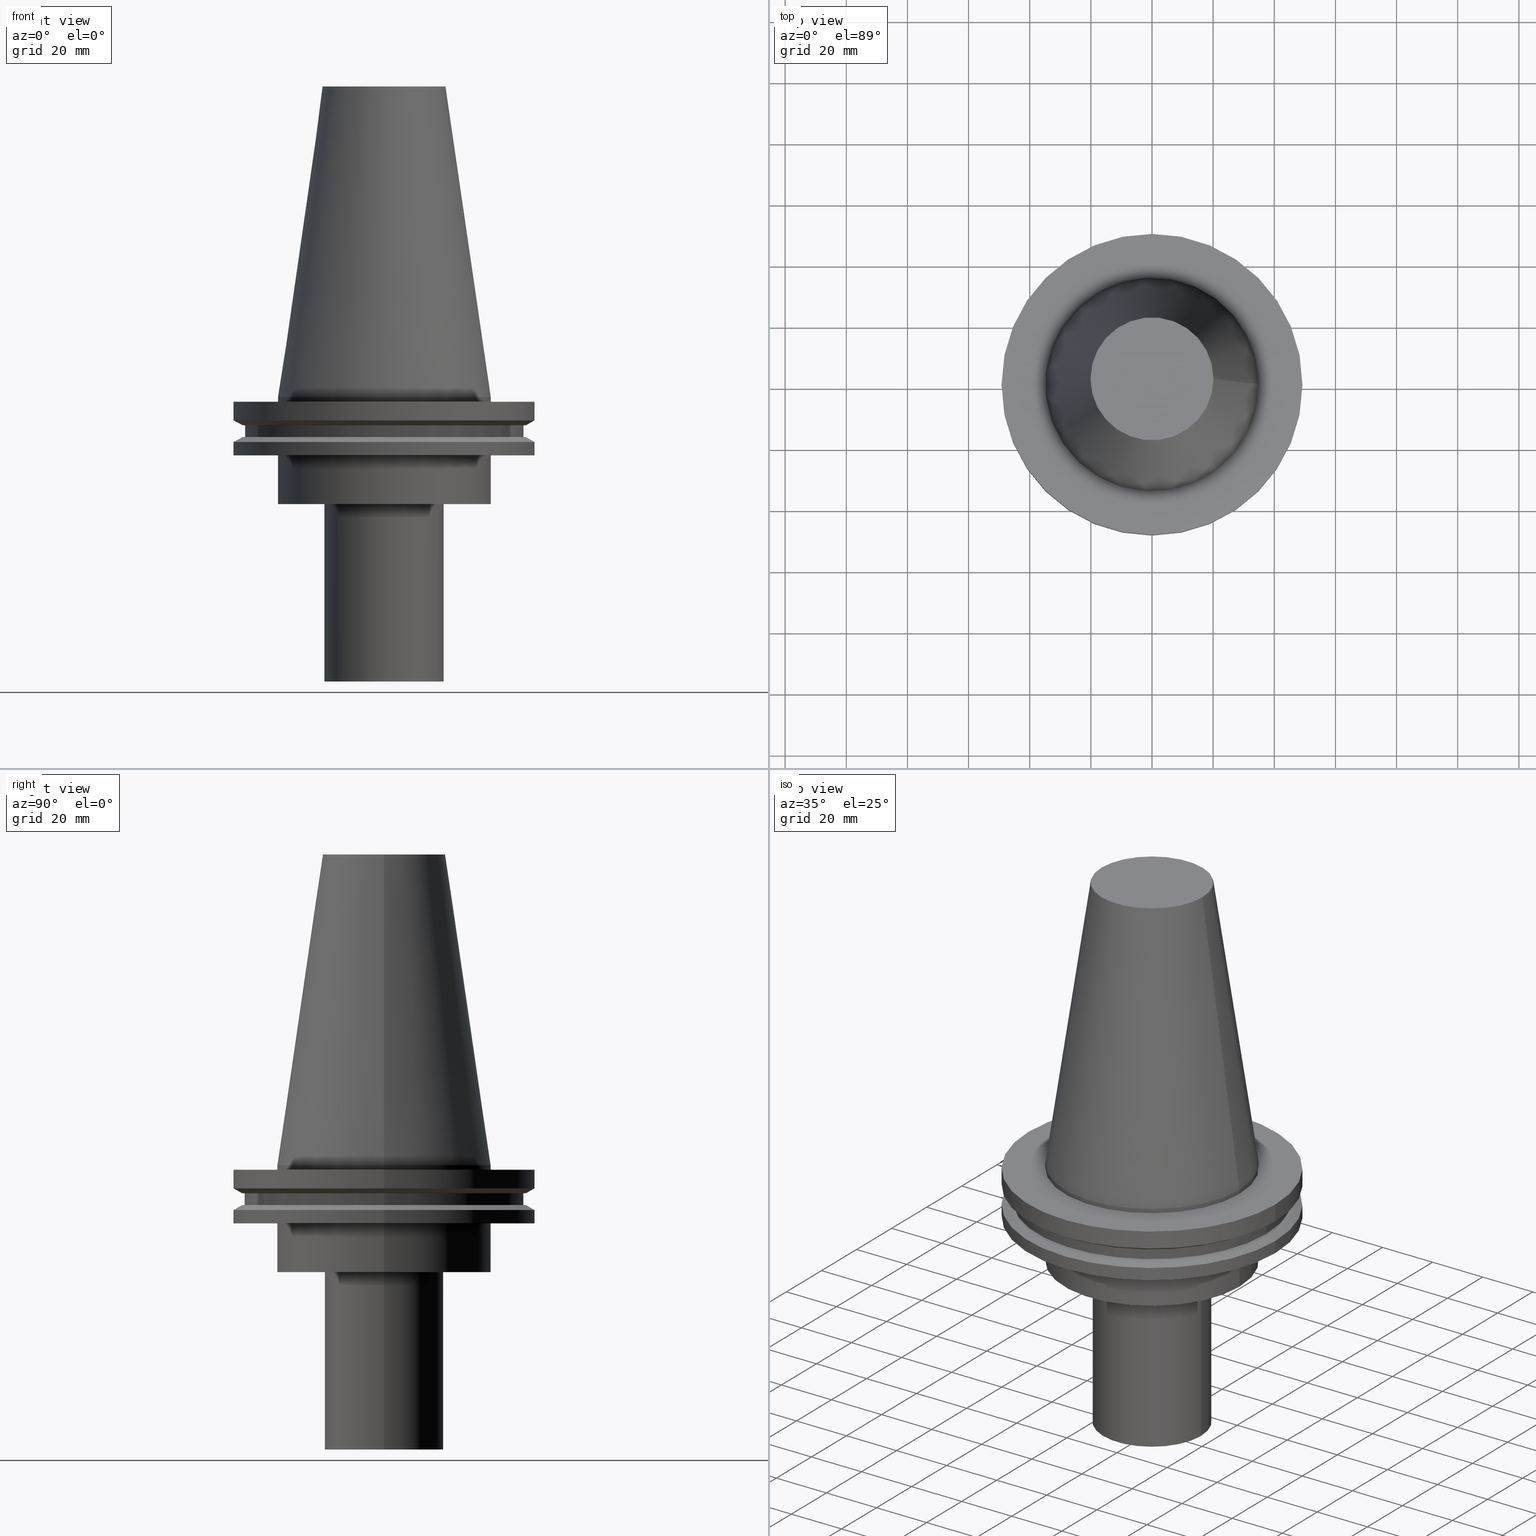
[diagram: canonical four-view strip — front | top / right | iso, engineering-drawing reading convention]
A machine part, canonical four-view strip (front | top / right | iso — engineering-drawing reading convention). The complete STEP part file that produces these views, byte-faithful:
ISO-10303-21;
HEADER;
FILE_DESCRIPTION (( 'STEP AP203' ),
    '1' );
FILE_NAME ('11.326.642.stp',
    '2022-03-09T14:50:59',
    ( '' ),
    ( '' ),
    'SwSTEP 2.0',
    'SolidWorks 2021',
    '' );
FILE_SCHEMA (( 'CONFIG_CONTROL_DESIGN' ));
ENDSEC;

DATA;
#1 = CIRCLE ( 'NONE', #322, 49.21499999999998920 ) ;
#2 = LOCAL_TIME ( 8, 50, 59.00000000000000000, #100 ) ;
#3 = VERTEX_POINT ( 'NONE', #374 ) ;
#4 = AXIS2_PLACEMENT_3D ( 'NONE', #281, #8, #366 ) ;
#5 = CARTESIAN_POINT ( 'NONE',  ( 0.000000000000000000, 0.000000000000000000, -9.204999999999991189 ) ) ;
#6 = CC_DESIGN_PERSON_AND_ORGANIZATION_ASSIGNMENT ( #320, #263, ( #236 ) ) ;
#7 = DIRECTION ( 'NONE',  ( 1.000000000000000000, 0.000000000000000000, 0.000000000000000000 ) ) ;
#8 = DIRECTION ( 'NONE',  ( -0.000000000000000000, -0.000000000000000000, 1.000000000000000000 ) ) ;
#9 = ORGANIZATION ( 'UNSPECIFIED', 'UNSPECIFIED', '' ) ;
#10 = DIRECTION ( 'NONE',  ( 1.000000000000000000, 0.000000000000000000, 0.000000000000000000 ) ) ;
#11 = FACE_OUTER_BOUND ( 'NONE', #176, .T. ) ;
#12 =( NAMED_UNIT ( * ) SI_UNIT ( $, .STERADIAN. ) SOLID_ANGLE_UNIT ( ) );
#13 = FACE_OUTER_BOUND ( 'NONE', #326, .T. ) ;
#14 = AXIS2_PLACEMENT_3D ( 'NONE', #224, #137, #262 ) ;
#15 = LOCAL_TIME ( 8, 50, 59.00000000000000000, #161 ) ;
#16 = CARTESIAN_POINT ( 'NONE',  ( 0.000000000000000000, 0.000000000000000000, 101.5999999999999943 ) ) ;
#17 = DATE_TIME_ROLE ( 'creation_date' ) ;
#18 = ADVANCED_FACE ( 'NONE', ( #277, #59 ), #252, .F. ) ;
#19 = UNCERTAINTY_MEASURE_WITH_UNIT (LENGTH_MEASURE( 1.000000000000000082E-05 ), #125, 'distance_accuracy_value', 'NONE');
#20 = FACE_BOUND ( 'NONE', #62, .T. ) ;
#21 = CARTESIAN_POINT ( 'NONE',  ( 45.64500000000000313, 0.000000000000000000, -9.204999999999991189 ) ) ;
#22 = ORIENTED_EDGE ( 'NONE', *, *, #234, .T. ) ;
#23 = ADVANCED_FACE ( 'NONE', ( #244, #309 ), #182, .T. ) ;
#24 = VERTEX_POINT ( 'NONE', #302 ) ;
#25 = PLANE ( 'NONE',  #74 ) ;
#26 = EDGE_LOOP ( 'NONE', ( #206 ) ) ;
#27 = DATE_TIME_ROLE ( 'classification_date' ) ;
#28 = VERTEX_POINT ( 'NONE', #148 ) ;
#29 = CIRCLE ( 'NONE', #160, 20.10819343178871321 ) ;
#30 = ORIENTED_EDGE ( 'NONE', *, *, #354, .F. ) ;
#31 = PLANE ( 'NONE',  #81 ) ;
#32 = AXIS2_PLACEMENT_3D ( 'NONE', #188, #305, #336 ) ;
#33 = ORIENTED_EDGE ( 'NONE', *, *, #370, .T. ) ;
#34 = AXIS2_PLACEMENT_3D ( 'NONE', #340, #65, #283 ) ;
#35 = AXIS2_PLACEMENT_3D ( 'NONE', #321, #376, #10 ) ;
#36 = ADVANCED_FACE ( 'NONE', ( #124 ), #31, .F. ) ;
#37 = EDGE_LOOP ( 'NONE', ( #185 ) ) ;
#38 = DIRECTION ( 'NONE',  ( 1.000000000000000000, 0.000000000000000000, 0.000000000000000000 ) ) ;
#39 = DIRECTION ( 'NONE',  ( -0.000000000000000000, -0.000000000000000000, 1.000000000000000000 ) ) ;
#40 = APPROVAL_STATUS ( 'not_yet_approved' ) ;
#41 = CC_DESIGN_APPROVAL ( #104, ( #236 ) ) ;
#42 = DIRECTION ( 'NONE',  ( 1.000000000000000000, 0.000000000000000000, 0.000000000000000000 ) ) ;
#43 = DIRECTION ( 'NONE',  ( 1.000000000000000000, 0.000000000000000000, 0.000000000000000000 ) ) ;
#44 = FACE_OUTER_BOUND ( 'NONE', #334, .T. ) ;
#45 = CARTESIAN_POINT ( 'NONE',  ( 0.000000000000000000, 0.000000000000000000, -1.499999999999987566 ) ) ;
#46 = VERTEX_POINT ( 'NONE', #21 ) ;
#47 = ORIENTED_EDGE ( 'NONE', *, *, #87, .T. ) ;
#48 = CARTESIAN_POINT ( 'NONE',  ( 0.000000000000000000, 0.000000000000000000, -14.65761014474876944 ) ) ;
#49 = CC_DESIGN_SECURITY_CLASSIFICATION ( #268, ( #236 ) ) ;
#50 = EDGE_LOOP ( 'NONE', ( #362 ) ) ;
#51 = EDGE_CURVE ( 'NONE', #324, #324, #1, .T. ) ;
#52 = FACE_OUTER_BOUND ( 'NONE', #55, .T. ) ;
#53 = EDGE_LOOP ( 'NONE', ( #393 ) ) ;
#54 = FACE_OUTER_BOUND ( 'NONE', #50, .T. ) ;
#55 = EDGE_LOOP ( 'NONE', ( #270 ) ) ;
#56 = CARTESIAN_POINT ( 'NONE',  ( 19.50000000000000000, 0.000000000000000000, -35.00000000000000000 ) ) ;
#57 = EDGE_CURVE ( 'NONE', #46, #46, #247, .T. ) ;
#58 = EDGE_LOOP ( 'NONE', ( #212 ) ) ;
#59 = FACE_BOUND ( 'NONE', #331, .T. ) ;
#60 = EDGE_LOOP ( 'NONE', ( #358 ) ) ;
#61 = EDGE_CURVE ( 'NONE', #142, #142, #193, .T. ) ;
#62 = EDGE_LOOP ( 'NONE', ( #122 ) ) ;
#63 = CIRCLE ( 'NONE', #83, 19.50000000000000000 ) ;
#64 = FACE_BOUND ( 'NONE', #275, .T. ) ;
#65 = DIRECTION ( 'NONE',  ( -0.000000000000000000, -0.000000000000000000, 1.000000000000000000 ) ) ;
#66 = ADVANCED_FACE ( 'NONE', ( #337, #64 ), #153, .T. ) ;
#67 = DIRECTION ( 'NONE',  ( -1.000000000000000000, 0.000000000000000000, 0.000000000000000000 ) ) ;
#68 = APPLICATION_PROTOCOL_DEFINITION ( 'international standard', 'config_control_design', 1994, #203 ) ;
#69 = CARTESIAN_POINT ( 'NONE',  ( 0.000000000000000000, 0.000000000000000000, 101.5999999999999943 ) ) ;
#70 = FACE_OUTER_BOUND ( 'NONE', #388, .T. ) ;
#71 = EDGE_CURVE ( 'NONE', #300, #300, #230, .T. ) ;
#72 = FACE_OUTER_BOUND ( 'NONE', #60, .T. ) ;
#73 = DIRECTION ( 'NONE',  ( 1.000000000000000000, 0.000000000000000000, 0.000000000000000000 ) ) ;
#74 = AXIS2_PLACEMENT_3D ( 'NONE', #146, #266, #204 ) ;
#75 = DIRECTION ( 'NONE',  ( 1.000000000000000000, 0.000000000000000000, 0.000000000000000000 ) ) ;
#76 = DIRECTION ( 'NONE',  ( -0.000000000000000000, -0.000000000000000000, 1.000000000000000000 ) ) ;
#77 = CALENDAR_DATE ( 2022, 9, 3 ) ;
#78 = PRODUCT_RELATED_PRODUCT_CATEGORY ( 'detail', '', ( #274 ) ) ;
#79 = CARTESIAN_POINT ( 'NONE',  ( 49.21500000000000341, 0.000000000000000000, -7.602389855251287187 ) ) ;
#80 = APPROVAL_DATE_TIME ( #359, #187 ) ;
#81 = AXIS2_PLACEMENT_3D ( 'NONE', #279, #183, #375 ) ;
#82 = DIRECTION ( 'NONE',  ( 1.000000000000000000, 0.000000000000000000, 0.000000000000000000 ) ) ;
#83 = AXIS2_PLACEMENT_3D ( 'NONE', #99, #315, #42 ) ;
#84 = EDGE_LOOP ( 'NONE', ( #95 ) ) ;
#85 = CARTESIAN_POINT ( 'NONE',  ( 0.000000000000000000, 46.43919780457007818, -9.204999999999998295 ) ) ;
#86 = ORIENTED_EDGE ( 'NONE', *, *, #127, .T. ) ;
#87 = EDGE_CURVE ( 'NONE', #24, #24, #90, .T. ) ;
#88 = VERTEX_POINT ( 'NONE', #97 ) ;
#89 = CARTESIAN_POINT ( 'NONE',  ( 0.000000000000000000, 0.000000000000000000, -9.204999999999991189 ) ) ;
#90 = CIRCLE ( 'NONE', #14, 46.43919780457007818 ) ;
#91 = ORIENTED_EDGE ( 'NONE', *, *, #57, .T. ) ;
#92 = CC_DESIGN_APPROVAL ( #257, ( #201 ) ) ;
#93 = CC_DESIGN_PERSON_AND_ORGANIZATION_ASSIGNMENT ( #106, #108, ( #274 ) ) ;
#94 = ORIENTED_EDGE ( 'NONE', *, *, #163, .F. ) ;
#95 = ORIENTED_EDGE ( 'NONE', *, *, #71, .F. ) ;
#96 = CARTESIAN_POINT ( 'NONE',  ( 0.000000000000000000, 0.000000000000000000, -7.602389855251287187 ) ) ;
#97 = CARTESIAN_POINT ( 'NONE',  ( 20.10819343178871321, 0.000000000000000000, 101.5999999999999801 ) ) ;
#98 = PLANE ( 'NONE',  #242 ) ;
#99 = CARTESIAN_POINT ( 'NONE',  ( 0.000000000000000000, 0.000000000000000000, -35.00000000000000000 ) ) ;
#100 = COORDINATED_UNIVERSAL_TIME_OFFSET ( 6, 0, .BEHIND. ) ;
#101 = DIRECTION ( 'NONE',  ( -0.000000000000000000, -0.000000000000000000, 1.000000000000000000 ) ) ;
#102 = PERSON_AND_ORGANIZATION ( #158, #9 ) ;
#103 = CONICAL_SURFACE ( 'NONE', #171, 49.21499999999998920, 1.047197551196554333 ) ;
#104 = APPROVAL ( #380, 'UNSPECIFIED' ) ;
#105 = DIRECTION ( 'NONE',  ( 1.000000000000000000, 0.000000000000000000, 0.000000000000000000 ) ) ;
#106 = PERSON_AND_ORGANIZATION ( #158, #9 ) ;
#107 = CYLINDRICAL_SURFACE ( 'NONE', #344, 49.21499999999999631 ) ;
#108 = PERSON_AND_ORGANIZATION_ROLE ( 'design_owner' ) ;
#109 = FACE_BOUND ( 'NONE', #157, .T. ) ;
#110 = CARTESIAN_POINT ( 'NONE',  ( 0.000000000000000000, 0.000000000000000000, -1.499999999999987566 ) ) ;
#111 = EDGE_LOOP ( 'NONE', ( #218 ) ) ;
#112 = APPROVAL_ROLE ( '' ) ;
#113 = VERTEX_POINT ( 'NONE', #301 ) ;
#114 = CARTESIAN_POINT ( 'NONE',  ( 49.21499999999998920, 0.000000000000000000, -14.65761014474876944 ) ) ;
#115 = EDGE_LOOP ( 'NONE', ( #22 ) ) ;
#116 = VERTEX_POINT ( 'NONE', #56 ) ;
#117 = CARTESIAN_POINT ( 'NONE',  ( 49.21499999999999631, 0.000000000000000000, -1.499999999999987566 ) ) ;
#118 = ORIENTED_EDGE ( 'NONE', *, *, #61, .T. ) ;
#119 = CIRCLE ( 'NONE', #128, 34.92499999999999716 ) ;
#120 = CIRCLE ( 'NONE', #34, 34.92499999999999005 ) ;
#121 = VERTEX_POINT ( 'NONE', #186 ) ;
#122 = ORIENTED_EDGE ( 'NONE', *, *, #370, .F. ) ;
#123 = VERTEX_POINT ( 'NONE', #338 ) ;
#124 = FACE_OUTER_BOUND ( 'NONE', #37, .T. ) ;
#125 =( LENGTH_UNIT ( ) NAMED_UNIT ( * ) SI_UNIT ( .MILLI., .METRE. ) );
#126 = FACE_OUTER_BOUND ( 'NONE', #58, .T. ) ;
#127 = EDGE_CURVE ( 'NONE', #144, #144, #228, .T. ) ;
#128 = AXIS2_PLACEMENT_3D ( 'NONE', #377, #39, #199 ) ;
#129 = DIRECTION ( 'NONE',  ( -0.000000000000000000, -0.000000000000000000, 1.000000000000000000 ) ) ;
#130 = COORDINATED_UNIVERSAL_TIME_OFFSET ( 6, 0, .BEHIND. ) ;
#131 = PRODUCT_DEFINITION_SHAPE ( 'NONE', 'NONE',  #201 ) ;
#132 = PLANE ( 'NONE',  #333 ) ;
#133 = ADVANCED_FACE ( 'NONE', ( #44 ), #98, .F. ) ;
#134 = FACE_OUTER_BOUND ( 'NONE', #169, .T. ) ;
#135 = ADVANCED_BREP_SHAPE_REPRESENTATION ( '11.326.642', ( #328, #210 ), #387 ) ;
#136 = CARTESIAN_POINT ( 'NONE',  ( 0.000000000000000000, 0.000000000000000000, 0.000000000000000000 ) ) ;
#137 = DIRECTION ( 'NONE',  ( -0.000000000000000000, -0.000000000000000000, 1.000000000000000000 ) ) ;
#138 = APPROVAL_DATE_TIME ( #351, #257 ) ;
#139 = PERSON_AND_ORGANIZATION ( #158, #9 ) ;
#140 = PLANE ( 'NONE',  #248 ) ;
#141 = CC_DESIGN_APPROVAL ( #187, ( #268 ) ) ;
#142 = VERTEX_POINT ( 'NONE', #79 ) ;
#143 = ORIENTED_EDGE ( 'NONE', *, *, #57, .F. ) ;
#144 = VERTEX_POINT ( 'NONE', #114 ) ;
#145 = CC_DESIGN_PERSON_AND_ORGANIZATION_ASSIGNMENT ( #343, #290, ( #201 ) ) ;
#146 = CARTESIAN_POINT ( 'NONE',  ( 0.000000000000000000, 49.21499999999999631, -1.499999999999992895 ) ) ;
#147 = ORIENTED_EDGE ( 'NONE', *, *, #287, .F. ) ;
#148 = CARTESIAN_POINT ( 'NONE',  ( 45.64500000000000313, 0.000000000000000000, -13.05499999999999794 ) ) ;
#149 = AXIS2_PLACEMENT_3D ( 'NONE', #291, #379, #43 ) ;
#150 = EDGE_LOOP ( 'NONE', ( #308 ) ) ;
#151 = CARTESIAN_POINT ( 'NONE',  ( 0.000000000000000000, 0.000000000000000000, -19.04999999999999716 ) ) ;
#152 = ADVANCED_FACE ( 'NONE', ( #342, #319 ), #348, .T. ) ;
#153 = CONICAL_SURFACE ( 'NONE', #4, 46.43919780457007818, 1.047197551196575205 ) ;
#154 = ORIENTED_EDGE ( 'NONE', *, *, #51, .F. ) ;
#155 = EDGE_LOOP ( 'NONE', ( #86 ) ) ;
#156 = ADVANCED_FACE ( 'NONE', ( #189, #166 ), #107, .T. ) ;
#157 = EDGE_LOOP ( 'NONE', ( #91 ) ) ;
#158 = PERSON ( 'UNSPECIFIED', 'UNSPECIFIED', 'UNSPECIFIED', ('UNSPECIFIED'), ('UNSPECIFIED'), ('UNSPECIFIED') ) ;
#159 = CYLINDRICAL_SURFACE ( 'NONE', #289, 19.50000000000000000 ) ;
#160 = AXIS2_PLACEMENT_3D ( 'NONE', #238, #76, #389 ) ;
#161 = COORDINATED_UNIVERSAL_TIME_OFFSET ( 6, 0, .BEHIND. ) ;
#162 = FACE_BOUND ( 'NONE', #239, .T. ) ;
#163 = EDGE_CURVE ( 'NONE', #360, #360, #368, .T. ) ;
#164 = DATE_AND_TIME ( #225, #2 ) ;
#165 = FACE_OUTER_BOUND ( 'NONE', #115, .T. ) ;
#166 = FACE_OUTER_BOUND ( 'NONE', #214, .T. ) ;
#167 = CARTESIAN_POINT ( 'NONE',  ( 0.000000000000000000, 0.000000000000000000, 0.000000000000000000 ) ) ;
#168 = SECURITY_CLASSIFICATION_LEVEL ( 'unclassified' ) ;
#169 = EDGE_LOOP ( 'NONE', ( #304 ) ) ;
#170 = CARTESIAN_POINT ( 'NONE',  ( 0.000000000000000000, 0.000000000000000000, -92.99999999999997158 ) ) ;
#171 = AXIS2_PLACEMENT_3D ( 'NONE', #48, #355, #172 ) ;
#172 = DIRECTION ( 'NONE',  ( -1.000000000000000000, 0.000000000000000000, 0.000000000000000000 ) ) ;
#173 = AXIS2_PLACEMENT_3D ( 'NONE', #280, #249, #7 ) ;
#174 = ADVANCED_FACE ( 'NONE', ( #317, #165 ), #299, .T. ) ;
#175 = DIRECTION ( 'NONE',  ( -0.000000000000000000, -0.000000000000000000, 1.000000000000000000 ) ) ;
#176 = EDGE_LOOP ( 'NONE', ( #47 ) ) ;
#177 = VERTEX_POINT ( 'NONE', #245 ) ;
#178 = ORIENTED_EDGE ( 'NONE', *, *, #51, .T. ) ;
#179 = CIRCLE ( 'NONE', #353, 19.50000000000000000 ) ;
#180 = DIRECTION ( 'NONE',  ( 1.000000000000000000, 0.000000000000000000, 0.000000000000000000 ) ) ;
#181 = APPLICATION_CONTEXT ( 'configuration controlled 3d designs of mechanical parts and assemblies' ) ;
#182 = CYLINDRICAL_SURFACE ( 'NONE', #173, 34.92499999999999005 ) ;
#183 = DIRECTION ( 'NONE',  ( 0.000000000000000000, 0.000000000000000000, -1.000000000000000000 ) ) ;
#184 = AXIS2_PLACEMENT_3D ( 'NONE', #89, #215, #180 ) ;
#185 = ORIENTED_EDGE ( 'NONE', *, *, #339, .T. ) ;
#186 = CARTESIAN_POINT ( 'NONE',  ( 34.92499999999999005, 0.000000000000000000, -1.499999999999987566 ) ) ;
#187 = APPROVAL ( #356, 'UNSPECIFIED' ) ;
#188 = CARTESIAN_POINT ( 'NONE',  ( 0.000000000000000000, 49.21499999999998920, -19.04999999999999716 ) ) ;
#189 = FACE_OUTER_BOUND ( 'NONE', #372, .T. ) ;
#190 = APPROVAL_ROLE ( '' ) ;
#191 = DIRECTION ( 'NONE',  ( 1.000000000000000000, 0.000000000000000000, 0.000000000000000000 ) ) ;
#192 = APPROVAL_DATE_TIME ( #265, #104 ) ;
#193 = CIRCLE ( 'NONE', #267, 49.21500000000000341 ) ;
#194 = DIRECTION ( 'NONE',  ( -0.000000000000000000, -0.000000000000000000, 1.000000000000000000 ) ) ;
#195 = CC_DESIGN_DATE_AND_TIME_ASSIGNMENT ( #164, #27, ( #268 ) ) ;
#196 =( NAMED_UNIT ( * ) PLANE_ANGLE_UNIT ( ) SI_UNIT ( $, .RADIAN. ) );
#197 = DIRECTION ( 'NONE',  ( 1.000000000000000000, 0.000000000000000000, 0.000000000000000000 ) ) ;
#198 = DIRECTION ( 'NONE',  ( 0.000000000000000000, 0.000000000000000000, 1.000000000000000000 ) ) ;
#199 = DIRECTION ( 'NONE',  ( 1.000000000000000000, 0.000000000000000000, 0.000000000000000000 ) ) ;
#200 = CALENDAR_DATE ( 2022, 9, 3 ) ;
#201 = PRODUCT_DEFINITION ( 'UNKNOWN', '', #236, #276 ) ;
#202 = ORIENTED_EDGE ( 'NONE', *, *, #361, .T. ) ;
#203 = APPLICATION_CONTEXT ( 'configuration controlled 3d designs of mechanical parts and assemblies' ) ;
#204 = DIRECTION ( 'NONE',  ( -1.000000000000000000, 0.000000000000000000, -0.000000000000000000 ) ) ;
#205 = CARTESIAN_POINT ( 'NONE',  ( 46.43919780457007818, 0.000000000000000000, -9.204999999999991189 ) ) ;
#206 = ORIENTED_EDGE ( 'NONE', *, *, #234, .F. ) ;
#207 = CLOSED_SHELL ( 'NONE', ( #174, #36, #323, #250, #18, #152, #390, #303, #226, #318, #66, #156, #394, #23, #271, #133 ) ) ;
#208 = SHAPE_DEFINITION_REPRESENTATION ( #131, #135 ) ;
#209 = AXIS2_PLACEMENT_3D ( 'NONE', #222, #311, #346 ) ;
#210 = AXIS2_PLACEMENT_3D ( 'NONE', #136, #198, #73 ) ;
#211 = FACE_BOUND ( 'NONE', #150, .T. ) ;
#212 = ORIENTED_EDGE ( 'NONE', *, *, #287, .T. ) ;
#213 = DIRECTION ( 'NONE',  ( 0.000000000000000000, 0.000000000000000000, -1.000000000000000000 ) ) ;
#214 = EDGE_LOOP ( 'NONE', ( #118 ) ) ;
#215 = DIRECTION ( 'NONE',  ( -0.000000000000000000, -0.000000000000000000, 1.000000000000000000 ) ) ;
#216 = AXIS2_PLACEMENT_3D ( 'NONE', #5, #251, #373 ) ;
#217 = CIRCLE ( 'NONE', #35, 45.64500000000000313 ) ;
#218 = ORIENTED_EDGE ( 'NONE', *, *, #127, .F. ) ;
#219 = EDGE_LOOP ( 'NONE', ( #220 ) ) ;
#220 = ORIENTED_EDGE ( 'NONE', *, *, #339, .F. ) ;
#221 = DIRECTION ( 'NONE',  ( -0.000000000000000000, -0.000000000000000000, 1.000000000000000000 ) ) ;
#222 = CARTESIAN_POINT ( 'NONE',  ( 0.000000000000000000, 0.000000000000000000, 101.5999999999999943 ) ) ;
#223 = PERSON_AND_ORGANIZATION ( #158, #9 ) ;
#224 = CARTESIAN_POINT ( 'NONE',  ( 0.000000000000000000, 0.000000000000000000, -13.05499999999999794 ) ) ;
#225 = CALENDAR_DATE ( 2022, 9, 3 ) ;
#226 = ADVANCED_FACE ( 'NONE', ( #70, #126 ), #254, .T. ) ;
#227 = DIRECTION ( 'NONE',  ( 1.000000000000000000, 0.000000000000000000, 0.000000000000000000 ) ) ;
#228 = CIRCLE ( 'NONE', #149, 49.21499999999998920 ) ;
#229 = APPROVAL_PERSON_ORGANIZATION ( #298, #187, #112 ) ;
#230 = CIRCLE ( 'NONE', #184, 46.43919780457007818 ) ;
#231 = DIRECTION ( 'NONE',  ( -0.000000000000000000, -0.000000000000000000, 1.000000000000000000 ) ) ;
#232 = COORDINATED_UNIVERSAL_TIME_OFFSET ( 6, 0, .BEHIND. ) ;
#233 = DIRECTION ( 'NONE',  ( -0.000000000000000000, -0.000000000000000000, 1.000000000000000000 ) ) ;
#234 = EDGE_CURVE ( 'NONE', #113, #113, #120, .T. ) ;
#235 = CARTESIAN_POINT ( 'NONE',  ( 0.000000000000000000, 34.92499999999999716, -35.00000000000000000 ) ) ;
#236 = PRODUCT_DEFINITION_FORMATION_WITH_SPECIFIED_SOURCE ( 'ANY', '', #274, .NOT_KNOWN. ) ;
#237 = FACE_OUTER_BOUND ( 'NONE', #155, .T. ) ;
#238 = CARTESIAN_POINT ( 'NONE',  ( 0.000000000000000000, 0.000000000000000000, 101.5999999999999801 ) ) ;
#239 = EDGE_LOOP ( 'NONE', ( #147 ) ) ;
#240 = COORDINATED_UNIVERSAL_TIME_OFFSET ( 6, 0, .BEHIND. ) ;
#241 = DIRECTION ( 'NONE',  ( 1.000000000000000000, 0.000000000000000000, 0.000000000000000000 ) ) ;
#242 = AXIS2_PLACEMENT_3D ( 'NONE', #258, #383, #105 ) ;
#243 = AXIS2_PLACEMENT_3D ( 'NONE', #235, #352, #75 ) ;
#244 = FACE_OUTER_BOUND ( 'NONE', #26, .T. ) ;
#245 = CARTESIAN_POINT ( 'NONE',  ( 34.92499999999999716, 0.000000000000000000, -35.00000000000000000 ) ) ;
#246 = ORIENTED_EDGE ( 'NONE', *, *, #87, .F. ) ;
#247 = CIRCLE ( 'NONE', #216, 45.64500000000000313 ) ;
#248 = AXIS2_PLACEMENT_3D ( 'NONE', #85, #330, #241 ) ;
#249 = DIRECTION ( 'NONE',  ( -0.000000000000000000, -0.000000000000000000, 1.000000000000000000 ) ) ;
#250 = ADVANCED_FACE ( 'NONE', ( #13, #134 ), #285, .T. ) ;
#251 = DIRECTION ( 'NONE',  ( -0.000000000000000000, -0.000000000000000000, 1.000000000000000000 ) ) ;
#252 = PLANE ( 'NONE',  #32 ) ;
#253 = CIRCLE ( 'NONE', #260, 34.92499999999999005 ) ;
#254 = CYLINDRICAL_SURFACE ( 'NONE', #209, 45.64500000000000313 ) ;
#255 = DIRECTION ( 'NONE',  ( 1.000000000000000000, 0.000000000000000000, 0.000000000000000000 ) ) ;
#256 = CALENDAR_DATE ( 2022, 9, 3 ) ;
#257 = APPROVAL ( #40, 'UNSPECIFIED' ) ;
#258 = CARTESIAN_POINT ( 'NONE',  ( 0.000000000000000000, 19.50000000000000000, -92.99999999999997158 ) ) ;
#259 = CARTESIAN_POINT ( 'NONE',  ( 0.000000000000000000, 0.000000000000000000, 101.5999999999999943 ) ) ;
#260 = AXIS2_PLACEMENT_3D ( 'NONE', #110, #357, #386 ) ;
#261 = CC_DESIGN_PERSON_AND_ORGANIZATION_ASSIGNMENT ( #292, #341, ( #268 ) ) ;
#262 = DIRECTION ( 'NONE',  ( 1.000000000000000000, 0.000000000000000000, 0.000000000000000000 ) ) ;
#263 = PERSON_AND_ORGANIZATION_ROLE ( 'creator' ) ;
#264 = DIRECTION ( 'NONE',  ( -0.000000000000000000, -0.000000000000000000, 1.000000000000000000 ) ) ;
#265 = DATE_AND_TIME ( #256, #381 ) ;
#266 = DIRECTION ( 'NONE',  ( 0.000000000000000000, 0.000000000000000000, -1.000000000000000000 ) ) ;
#267 = AXIS2_PLACEMENT_3D ( 'NONE', #96, #221, #38 ) ;
#268 = SECURITY_CLASSIFICATION ( '', '', #168 ) ;
#269 = PLANE ( 'NONE',  #243 ) ;
#270 = ORIENTED_EDGE ( 'NONE', *, *, #163, .T. ) ;
#271 = ADVANCED_FACE ( 'NONE', ( #350, #72 ), #159, .T. ) ;
#272 = CARTESIAN_POINT ( 'NONE',  ( 49.21499999999998920, 0.000000000000000000, -19.04999999999999716 ) ) ;
#273 = ORIENTED_EDGE ( 'NONE', *, *, #71, .T. ) ;
#274 = PRODUCT ( '11.326.642', '11.326.642', '', ( #384 ) ) ;
#275 = EDGE_LOOP ( 'NONE', ( #273 ) ) ;
#276 = DESIGN_CONTEXT ( 'detailed design', #203, 'design' ) ;
#277 = FACE_OUTER_BOUND ( 'NONE', #329, .T. ) ;
#278 = AXIS2_PLACEMENT_3D ( 'NONE', #382, #286, #67 ) ;
#279 = CARTESIAN_POINT ( 'NONE',  ( 0.000000000000000000, 20.10819343178871321, 101.5999999999999943 ) ) ;
#280 = CARTESIAN_POINT ( 'NONE',  ( 0.000000000000000000, 0.000000000000000000, 101.5999999999999943 ) ) ;
#281 = CARTESIAN_POINT ( 'NONE',  ( 0.000000000000000000, 0.000000000000000000, -9.204999999999991189 ) ) ;
#282 = AXIS2_PLACEMENT_3D ( 'NONE', #259, #129, #255 ) ;
#283 = DIRECTION ( 'NONE',  ( 1.000000000000000000, 0.000000000000000000, 0.000000000000000000 ) ) ;
#284 = EDGE_CURVE ( 'NONE', #177, #177, #119, .T. ) ;
#285 = CYLINDRICAL_SURFACE ( 'NONE', #282, 34.92499999999999716 ) ;
#286 = DIRECTION ( 'NONE',  ( 0.000000000000000000, 0.000000000000000000, -1.000000000000000000 ) ) ;
#287 = EDGE_CURVE ( 'NONE', #28, #28, #217, .T. ) ;
#288 = DIRECTION ( 'NONE',  ( 1.000000000000000000, 0.000000000000000000, 0.000000000000000000 ) ) ;
#289 = AXIS2_PLACEMENT_3D ( 'NONE', #167, #231, #197 ) ;
#290 = PERSON_AND_ORGANIZATION_ROLE ( 'creator' ) ;
#291 = CARTESIAN_POINT ( 'NONE',  ( 0.000000000000000000, 0.000000000000000000, -14.65761014474876944 ) ) ;
#292 = PERSON_AND_ORGANIZATION ( #158, #9 ) ;
#293 = CARTESIAN_POINT ( 'NONE',  ( 0.000000000000000000, 0.000000000000000000, -19.04999999999999716 ) ) ;
#294 = FACE_BOUND ( 'NONE', #392, .T. ) ;
#295 = EDGE_LOOP ( 'NONE', ( #33 ) ) ;
#296 = EDGE_CURVE ( 'NONE', #116, #116, #63, .T. ) ;
#297 = APPROVAL_PERSON_ORGANIZATION ( #102, #104, #349 ) ;
#298 = PERSON_AND_ORGANIZATION ( #158, #9 ) ;
#299 = CONICAL_SURFACE ( 'NONE', #278, 34.92499999999999005, 0.1448138465474119452 ) ;
#300 = VERTEX_POINT ( 'NONE', #205 ) ;
#301 = CARTESIAN_POINT ( 'NONE',  ( 34.92499999999999005, 0.000000000000000000, 0.000000000000000000 ) ) ;
#302 = CARTESIAN_POINT ( 'NONE',  ( 46.43919780457007818, 0.000000000000000000, -13.05499999999999794 ) ) ;
#303 = ADVANCED_FACE ( 'NONE', ( #162, #11 ), #132, .F. ) ;
#304 = ORIENTED_EDGE ( 'NONE', *, *, #284, .T. ) ;
#305 = DIRECTION ( 'NONE',  ( 0.000000000000000000, -0.000000000000000000, 1.000000000000000000 ) ) ;
#306 = DIRECTION ( 'NONE',  ( 1.000000000000000000, 0.000000000000000000, 0.000000000000000000 ) ) ;
#307 = CIRCLE ( 'NONE', #345, 34.92499999999999716 ) ;
#308 = ORIENTED_EDGE ( 'NONE', *, *, #296, .T. ) ;
#309 = FACE_OUTER_BOUND ( 'NONE', #295, .T. ) ;
#310 = CC_DESIGN_PERSON_AND_ORGANIZATION_ASSIGNMENT ( #223, #347, ( #236 ) ) ;
#311 = DIRECTION ( 'NONE',  ( -0.000000000000000000, -0.000000000000000000, 1.000000000000000000 ) ) ;
#312 = DATE_AND_TIME ( #200, #369 ) ;
#313 = AXIS2_PLACEMENT_3D ( 'NONE', #69, #194, #191 ) ;
#314 = LOCAL_TIME ( 8, 50, 59.00000000000000000, #240 ) ;
#315 = DIRECTION ( 'NONE',  ( -0.000000000000000000, -0.000000000000000000, 1.000000000000000000 ) ) ;
#316 = APPLICATION_PROTOCOL_DEFINITION ( 'international standard', 'config_control_design', 1994, #181 ) ;
#317 = FACE_BOUND ( 'NONE', #219, .T. ) ;
#318 = ADVANCED_FACE ( 'NONE', ( #325, #109 ), #140, .F. ) ;
#319 = FACE_OUTER_BOUND ( 'NONE', #332, .T. ) ;
#320 = PERSON_AND_ORGANIZATION ( #158, #9 ) ;
#321 = CARTESIAN_POINT ( 'NONE',  ( 0.000000000000000000, 0.000000000000000000, -13.05499999999999794 ) ) ;
#322 = AXIS2_PLACEMENT_3D ( 'NONE', #151, #335, #306 ) ;
#323 = ADVANCED_FACE ( 'NONE', ( #211, #54 ), #269, .F. ) ;
#324 = VERTEX_POINT ( 'NONE', #272 ) ;
#325 = FACE_OUTER_BOUND ( 'NONE', #84, .T. ) ;
#326 = EDGE_LOOP ( 'NONE', ( #395 ) ) ;
#327 = DIRECTION ( 'NONE',  ( -1.000000000000000000, 0.000000000000000000, -0.000000000000000000 ) ) ;
#328 = MANIFOLD_SOLID_BREP ( 'CKB', #207 ) ;
#329 = EDGE_LOOP ( 'NONE', ( #154 ) ) ;
#330 = DIRECTION ( 'NONE',  ( 0.000000000000000000, -0.000000000000000000, 1.000000000000000000 ) ) ;
#331 = EDGE_LOOP ( 'NONE', ( #202 ) ) ;
#332 = EDGE_LOOP ( 'NONE', ( #178 ) ) ;
#333 = AXIS2_PLACEMENT_3D ( 'NONE', #364, #213, #327 ) ;
#334 = EDGE_LOOP ( 'NONE', ( #30 ) ) ;
#335 = DIRECTION ( 'NONE',  ( -0.000000000000000000, -0.000000000000000000, 1.000000000000000000 ) ) ;
#336 = DIRECTION ( 'NONE',  ( 1.000000000000000000, 0.000000000000000000, 0.000000000000000000 ) ) ;
#337 = FACE_OUTER_BOUND ( 'NONE', #53, .T. ) ;
#338 = CARTESIAN_POINT ( 'NONE',  ( 19.50000000000000000, 0.000000000000000000, -92.99999999999997158 ) ) ;
#339 = EDGE_CURVE ( 'NONE', #88, #88, #29, .T. ) ;
#340 = CARTESIAN_POINT ( 'NONE',  ( 0.000000000000000000, 0.000000000000000000, 0.000000000000000000 ) ) ;
#341 = PERSON_AND_ORGANIZATION_ROLE ( 'classification_officer' ) ;
#342 = FACE_OUTER_BOUND ( 'NONE', #111, .T. ) ;
#343 = PERSON_AND_ORGANIZATION ( #158, #9 ) ;
#344 = AXIS2_PLACEMENT_3D ( 'NONE', #16, #233, #288 ) ;
#345 = AXIS2_PLACEMENT_3D ( 'NONE', #293, #175, #82 ) ;
#346 = DIRECTION ( 'NONE',  ( 1.000000000000000000, 0.000000000000000000, 0.000000000000000000 ) ) ;
#347 = PERSON_AND_ORGANIZATION_ROLE ( 'design_supplier' ) ;
#348 = CYLINDRICAL_SURFACE ( 'NONE', #313, 49.21499999999998920 ) ;
#349 = APPROVAL_ROLE ( '' ) ;
#350 = FACE_OUTER_BOUND ( 'NONE', #367, .T. ) ;
#351 = DATE_AND_TIME ( #378, #15 ) ;
#352 = DIRECTION ( 'NONE',  ( 0.000000000000000000, -0.000000000000000000, 1.000000000000000000 ) ) ;
#353 = AXIS2_PLACEMENT_3D ( 'NONE', #170, #264, #391 ) ;
#354 = EDGE_CURVE ( 'NONE', #123, #123, #179, .T. ) ;
#355 = DIRECTION ( 'NONE',  ( 0.000000000000000000, 0.000000000000000000, -1.000000000000000000 ) ) ;
#356 = APPROVAL_STATUS ( 'not_yet_approved' ) ;
#357 = DIRECTION ( 'NONE',  ( -0.000000000000000000, -0.000000000000000000, 1.000000000000000000 ) ) ;
#358 = ORIENTED_EDGE ( 'NONE', *, *, #354, .T. ) ;
#359 = DATE_AND_TIME ( #77, #314 ) ;
#360 = VERTEX_POINT ( 'NONE', #117 ) ;
#361 = EDGE_CURVE ( 'NONE', #3, #3, #307, .T. ) ;
#362 = ORIENTED_EDGE ( 'NONE', *, *, #284, .F. ) ;
#363 = APPROVAL_PERSON_ORGANIZATION ( #139, #257, #190 ) ;
#364 = CARTESIAN_POINT ( 'NONE',  ( 0.000000000000000000, 45.64500000000000313, -13.05499999999999794 ) ) ;
#365 = ORIENTED_EDGE ( 'NONE', *, *, #296, .F. ) ;
#366 = DIRECTION ( 'NONE',  ( 1.000000000000000000, 0.000000000000000000, 0.000000000000000000 ) ) ;
#367 = EDGE_LOOP ( 'NONE', ( #365 ) ) ;
#368 = CIRCLE ( 'NONE', #371, 49.21499999999999631 ) ;
#369 = LOCAL_TIME ( 8, 50, 59.00000000000000000, #232 ) ;
#370 = EDGE_CURVE ( 'NONE', #121, #121, #253, .T. ) ;
#371 = AXIS2_PLACEMENT_3D ( 'NONE', #45, #101, #227 ) ;
#372 = EDGE_LOOP ( 'NONE', ( #94 ) ) ;
#373 = DIRECTION ( 'NONE',  ( 1.000000000000000000, 0.000000000000000000, 0.000000000000000000 ) ) ;
#374 = CARTESIAN_POINT ( 'NONE',  ( 34.92499999999999716, 0.000000000000000000, -19.04999999999999716 ) ) ;
#375 = DIRECTION ( 'NONE',  ( -1.000000000000000000, 0.000000000000000000, -0.000000000000000000 ) ) ;
#376 = DIRECTION ( 'NONE',  ( -0.000000000000000000, -0.000000000000000000, 1.000000000000000000 ) ) ;
#377 = CARTESIAN_POINT ( 'NONE',  ( 0.000000000000000000, 0.000000000000000000, -35.00000000000000000 ) ) ;
#378 = CALENDAR_DATE ( 2022, 9, 3 ) ;
#379 = DIRECTION ( 'NONE',  ( -0.000000000000000000, -0.000000000000000000, 1.000000000000000000 ) ) ;
#380 = APPROVAL_STATUS ( 'not_yet_approved' ) ;
#381 = LOCAL_TIME ( 8, 50, 59.00000000000000000, #130 ) ;
#382 = CARTESIAN_POINT ( 'NONE',  ( 0.000000000000000000, 0.000000000000000000, 0.000000000000000000 ) ) ;
#383 = DIRECTION ( 'NONE',  ( 0.000000000000000000, -0.000000000000000000, 1.000000000000000000 ) ) ;
#384 = MECHANICAL_CONTEXT ( 'NONE', #181, 'mechanical' ) ;
#385 = CC_DESIGN_DATE_AND_TIME_ASSIGNMENT ( #312, #17, ( #201 ) ) ;
#386 = DIRECTION ( 'NONE',  ( 1.000000000000000000, 0.000000000000000000, 0.000000000000000000 ) ) ;
#387 =( GEOMETRIC_REPRESENTATION_CONTEXT ( 3 ) GLOBAL_UNCERTAINTY_ASSIGNED_CONTEXT ( ( #19 ) ) GLOBAL_UNIT_ASSIGNED_CONTEXT ( ( #125, #196, #12 ) ) REPRESENTATION_CONTEXT ( 'NONE', 'WORKASPACE' ) );
#388 = EDGE_LOOP ( 'NONE', ( #143 ) ) ;
#389 = DIRECTION ( 'NONE',  ( 1.000000000000000000, 0.000000000000000000, 0.000000000000000000 ) ) ;
#390 = ADVANCED_FACE ( 'NONE', ( #294, #237 ), #103, .T. ) ;
#391 = DIRECTION ( 'NONE',  ( 1.000000000000000000, 0.000000000000000000, 0.000000000000000000 ) ) ;
#392 = EDGE_LOOP ( 'NONE', ( #246 ) ) ;
#393 = ORIENTED_EDGE ( 'NONE', *, *, #61, .F. ) ;
#394 = ADVANCED_FACE ( 'NONE', ( #20, #52 ), #25, .F. ) ;
#395 = ORIENTED_EDGE ( 'NONE', *, *, #361, .F. ) ;
ENDSEC;
END-ISO-10303-21;
